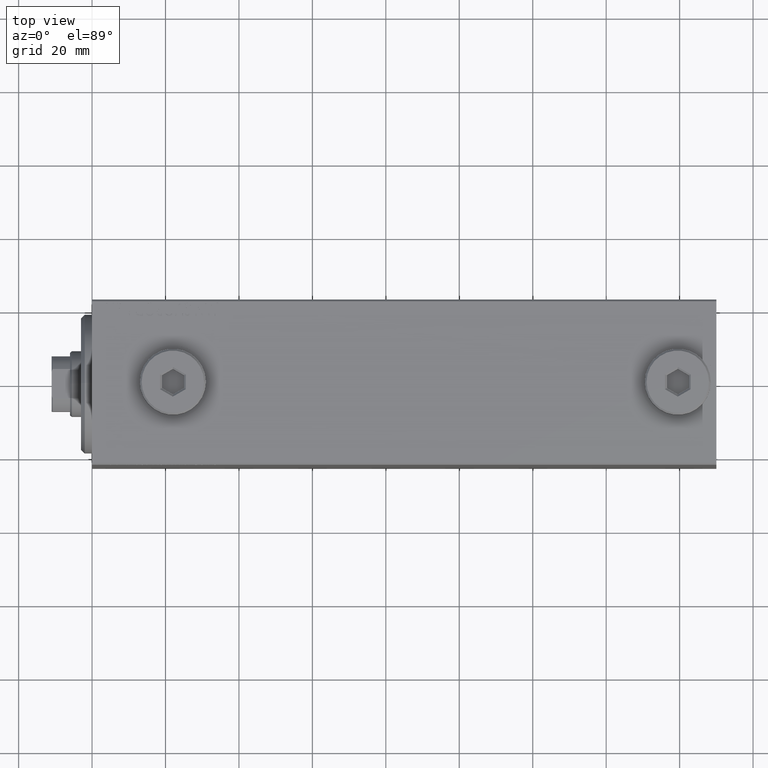
[diagram: clean part render]
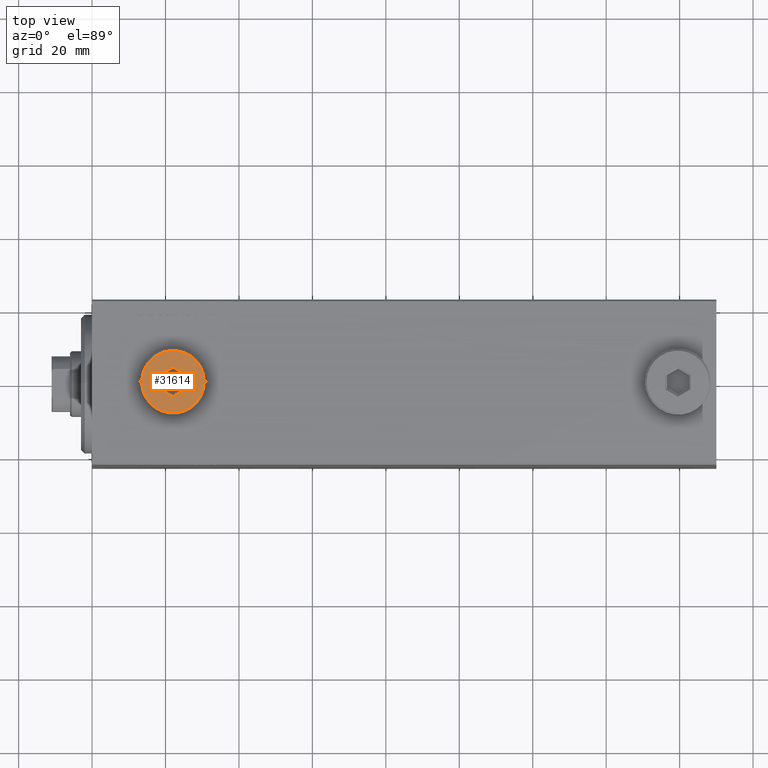
[diagram: same view with one face highlighted and labeled with its STEP entity id]
A machine part, top view. The second image highlights one B-rep face of the part: STEP entity #31614.
In plain terms, the highlighted planar face has unit normal (0, 0, 1).
Its self-contained STEP definition (entity closure, byte-faithful):
#56 = VERTEX_POINT ( 'NONE', #43155 ) ;
#115 = CARTESIAN_POINT ( 'NONE',  ( 1.590596867181068292E-15, 4.041451884327386779, 5.000000000000000000 ) ) ;
#1103 = LINE ( 'NONE', #5040, #20210 ) ;
#1582 = CIRCLE ( 'NONE', #45025, 8.500000000000010658 ) ;
#1634 = CARTESIAN_POINT ( 'NONE',  ( 3.250000000000003109, 2.165063509461103042, 5.000000000000000000 ) ) ;
#2668 = CARTESIAN_POINT ( 'NONE',  ( 0.000000000000000000, 0.000000000000000000, 5.000000000000000000 ) ) ;
#3274 = CARTESIAN_POINT ( 'NONE',  ( 0.000000000000000000, 0.000000000000000000, 5.000000000000000000 ) ) ;
#3828 = CARTESIAN_POINT ( 'NONE',  ( -3.500000000000006661, -2.020725942163694278, 5.000000000000000000 ) ) ;
#5040 = CARTESIAN_POINT ( 'NONE',  ( -0.2500000000000027756, 3.897114317029978459, 5.000000000000000000 ) ) ;
#5130 = DIRECTION ( 'NONE',  ( 1.000000000000000000, 0.000000000000000000, 0.000000000000000000 ) ) ;
#5329 = DIRECTION ( 'NONE',  ( -0.8660254037844387076, -0.4999999999999998890, 0.000000000000000000 ) ) ;
#5796 = VECTOR ( 'NONE', #29020, 1000.000000000000114 ) ;
#6111 = VERTEX_POINT ( 'NONE', #45617 ) ;
#6341 = PLANE ( 'NONE',  #24863 ) ;
#6560 = ORIENTED_EDGE ( 'NONE', *, *, #34795, .T. ) ;
#6873 = VERTEX_POINT ( 'NONE', #115 ) ;
#7536 = CARTESIAN_POINT ( 'NONE',  ( 8.500000000000010658, 1.071565949253934716E-15, 5.000000000000000000 ) ) ;
#8149 = EDGE_LOOP ( 'NONE', ( #22337, #20389, #42566, #36180, #38593, #28247 ) ) ;
#8555 = LINE ( 'NONE', #23066, #27123 ) ;
#8787 = AXIS2_PLACEMENT_3D ( 'NONE', #3274, #23172, #27917 ) ;
#8957 = LINE ( 'NONE', #44467, #10260 ) ;
#9300 = DIRECTION ( 'NONE',  ( 0.000000000000000000, -1.000000000000000000, 0.000000000000000000 ) ) ;
#10260 = VECTOR ( 'NONE', #43533, 1000.000000000000000 ) ;
#10562 = VERTEX_POINT ( 'NONE', #3828 ) ;
#11057 = CARTESIAN_POINT ( 'NONE',  ( -3.250000000000003109, -2.165063509461102598, 5.000000000000000000 ) ) ;
#12590 = FACE_BOUND ( 'NONE', #8149, .T. ) ;
#12883 = CARTESIAN_POINT ( 'NONE',  ( 3.500000000000006661, 2.020725942163694722, 5.000000000000000000 ) ) ;
#13217 = CARTESIAN_POINT ( 'NONE',  ( 3.500000000000006661, -1.732050807568878303, 5.000000000000000000 ) ) ;
#15239 = LINE ( 'NONE', #1634, #29725 ) ;
#15707 = DIRECTION ( 'NONE',  ( 0.8660254037844387076, -0.4999999999999998890, 0.000000000000000000 ) ) ;
#15925 = CARTESIAN_POINT ( 'NONE',  ( -3.500000000000006661, 2.020725942163692945, 5.000000000000000000 ) ) ;
#17953 = EDGE_CURVE ( 'NONE', #27128, #6873, #1103, .T. ) ;
#19064 = CIRCLE ( 'NONE', #8787, 8.500000000000010658 ) ;
#20210 = VECTOR ( 'NONE', #30156, 1000.000000000000000 ) ;
#20389 = ORIENTED_EDGE ( 'NONE', *, *, #17953, .T. ) ;
#22176 = EDGE_LOOP ( 'NONE', ( #45030, #6560 ) ) ;
#22337 = ORIENTED_EDGE ( 'NONE', *, *, #35955, .T. ) ;
#23066 = CARTESIAN_POINT ( 'NONE',  ( 0.2500000000000027756, -3.897114317029979347, 5.000000000000000000 ) ) ;
#23172 = DIRECTION ( 'NONE',  ( 0.000000000000000000, 0.000000000000000000, 1.000000000000000000 ) ) ;
#23806 = LINE ( 'NONE', #13217, #37355 ) ;
#24120 = EDGE_CURVE ( 'NONE', #43512, #56, #23806, .T. ) ;
#24667 = VERTEX_POINT ( 'NONE', #7536 ) ;
#24863 = AXIS2_PLACEMENT_3D ( 'NONE', #2668, #38152, #26640 ) ;
#25330 = LINE ( 'NONE', #11057, #5796 ) ;
#26640 = DIRECTION ( 'NONE',  ( 1.000000000000000000, 0.000000000000000000, -0.000000000000000000 ) ) ;
#27104 = EDGE_CURVE ( 'NONE', #56, #6111, #8555, .T. ) ;
#27123 = VECTOR ( 'NONE', #5329, 1000.000000000000000 ) ;
#27128 = VERTEX_POINT ( 'NONE', #15925 ) ;
#27545 = FACE_OUTER_BOUND ( 'NONE', #22176, .T. ) ;
#27917 = DIRECTION ( 'NONE',  ( 1.000000000000000000, 0.000000000000000000, 0.000000000000000000 ) ) ;
#28247 = ORIENTED_EDGE ( 'NONE', *, *, #33080, .T. ) ;
#29020 = DIRECTION ( 'NONE',  ( -0.8660254037844385966, 0.4999999999999999445, 0.000000000000000000 ) ) ;
#29725 = VECTOR ( 'NONE', #15707, 1000.000000000000000 ) ;
#30156 = DIRECTION ( 'NONE',  ( 0.8660254037844387076, 0.4999999999999998335, 0.000000000000000000 ) ) ;
#31614 = ADVANCED_FACE ( 'NONE', ( #12590, #27545 ), #6341, .T. ) ;
#32373 = CARTESIAN_POINT ( 'NONE',  ( -8.500000000000010658, 0.000000000000000000, 5.000000000000000000 ) ) ;
#33080 = EDGE_CURVE ( 'NONE', #6111, #10562, #25330, .T. ) ;
#34795 = EDGE_CURVE ( 'NONE', #24667, #38010, #19064, .T. ) ;
#35955 = EDGE_CURVE ( 'NONE', #10562, #27128, #8957, .T. ) ;
#36180 = ORIENTED_EDGE ( 'NONE', *, *, #24120, .T. ) ;
#36704 = CARTESIAN_POINT ( 'NONE',  ( 0.000000000000000000, 0.000000000000000000, 5.000000000000000000 ) ) ;
#37355 = VECTOR ( 'NONE', #9300, 1000.000000000000000 ) ;
#38010 = VERTEX_POINT ( 'NONE', #32373 ) ;
#38152 = DIRECTION ( 'NONE',  ( 0.000000000000000000, 0.000000000000000000, 1.000000000000000000 ) ) ;
#38593 = ORIENTED_EDGE ( 'NONE', *, *, #27104, .T. ) ;
#39282 = EDGE_CURVE ( 'NONE', #38010, #24667, #1582, .T. ) ;
#42566 = ORIENTED_EDGE ( 'NONE', *, *, #44670, .T. ) ;
#43155 = CARTESIAN_POINT ( 'NONE',  ( 3.500000000000006661, -2.020725942163693833, 5.000000000000000000 ) ) ;
#43512 = VERTEX_POINT ( 'NONE', #12883 ) ;
#43533 = DIRECTION ( 'NONE',  ( 0.000000000000000000, 1.000000000000000000, 0.000000000000000000 ) ) ;
#43855 = DIRECTION ( 'NONE',  ( 0.000000000000000000, 0.000000000000000000, 1.000000000000000000 ) ) ;
#44467 = CARTESIAN_POINT ( 'NONE',  ( -3.500000000000006661, 1.732050807568878081, 5.000000000000000000 ) ) ;
#44670 = EDGE_CURVE ( 'NONE', #6873, #43512, #15239, .T. ) ;
#45025 = AXIS2_PLACEMENT_3D ( 'NONE', #36704, #43855, #5130 ) ;
#45030 = ORIENTED_EDGE ( 'NONE', *, *, #39282, .T. ) ;
#45617 = CARTESIAN_POINT ( 'NONE',  ( -1.006139216460143630E-15, -4.041451884327387667, 5.000000000000000000 ) ) ;